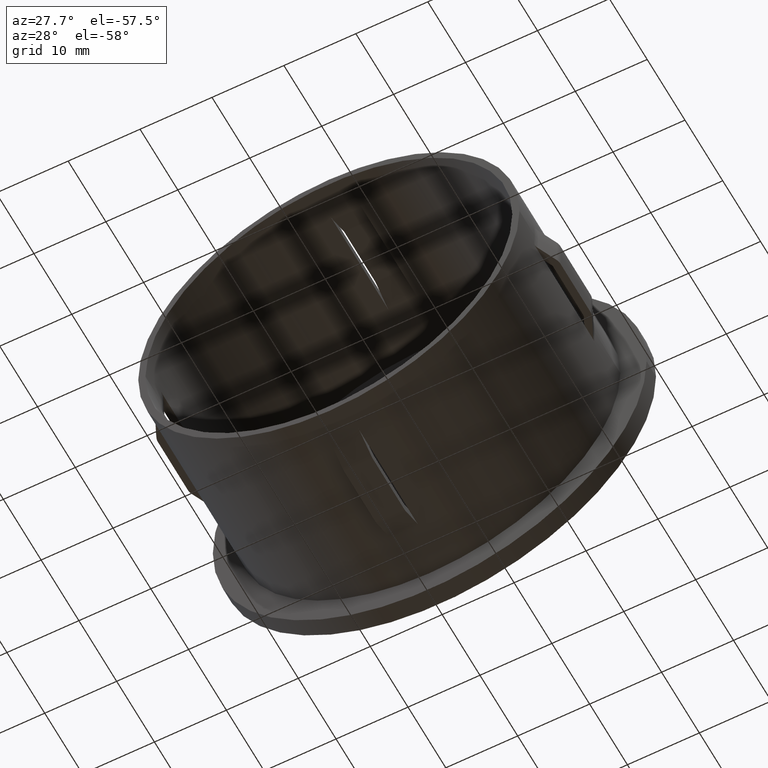
[diagram: clean part render]
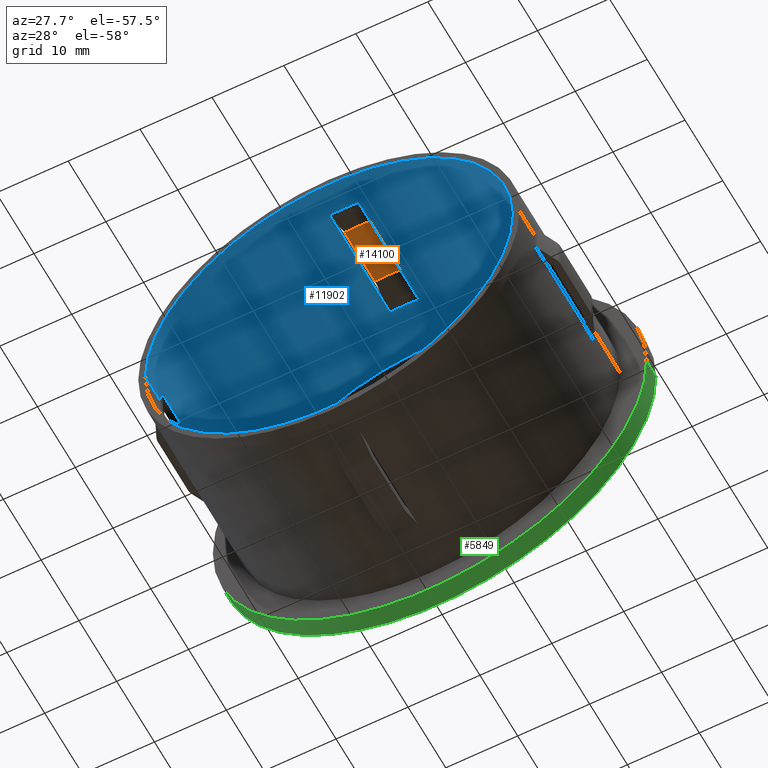
[diagram: same view with three faces highlighted in distinct colors, each labeled with its STEP entity id]
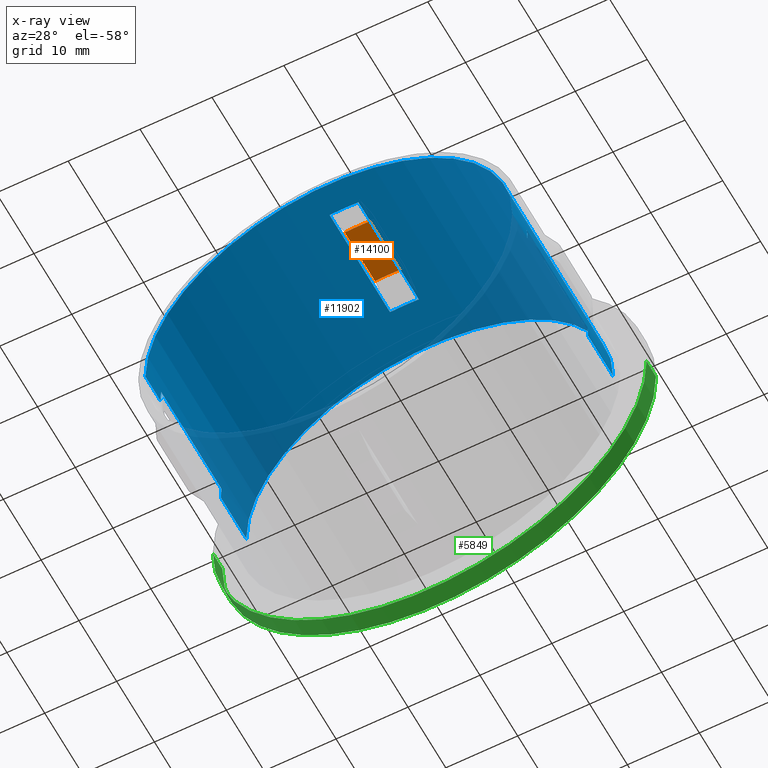
[diagram: x-ray of the same camera — body ghosted, the three highlighted faces saturated]
A machine part, auxiliary view with three faces highlighted in distinct colors.
The next image is the same camera in x-ray (body ghosted, the three faces saturated) — at least one of them is partly hidden behind the body in this view.
Their STEP definitions:

[orange] entity #14100 — the highlighted cylindrical surface (partial cylindrical patch) has radius 27.05 mm, axis along (-0, 1, -0).
#330 = ORIENTED_EDGE ( 'NONE', *, *, #9739, .T. ) ;
#1111 = DIRECTION ( 'NONE',  ( -1.000000000000000000, -1.282605157838674100E-016, 0.0000000000000000000 ) ) ;
#1411 = DIRECTION ( 'NONE',  ( -1.224646799147353200E-016, 1.000000000000000000, -0.0000000000000000000 ) ) ;
#1630 = DIRECTION ( 'NONE',  ( 1.224646799147353200E-016, -1.000000000000000000, 0.0000000000000000000 ) ) ;
#2383 = CARTESIAN_POINT ( 'NONE',  ( 1.494069094959771300E-015, 15.99999999999999600, 0.0000000000000000000 ) ) ;
#2896 = CARTESIAN_POINT ( 'NONE',  ( 2.000000000000006200, 29.19999999999999900, 26.97596152132487600 ) ) ;
#3032 = FACE_OUTER_BOUND ( 'NONE', #6493, .T. ) ;
#3214 = LINE ( 'NONE', #12410, #7482 ) ;
#3545 = CARTESIAN_POINT ( 'NONE',  ( 2.000000000000006200, 15.99999999999777600, 26.97596152134194700 ) ) ;
#3567 = DIRECTION ( 'NONE',  ( -1.224646799147353200E-016, 1.000000000000000000, -0.0000000000000000000 ) ) ;
#4308 = CARTESIAN_POINT ( 'NONE',  ( -1.999999999999990500, 7.999999999999996400, 26.97596152132487600 ) ) ;
#4696 = VECTOR ( 'NONE', #10509, 1000.000000000000000 ) ;
#5153 = VERTEX_POINT ( 'NONE', #4308 ) ;
#5717 = LINE ( 'NONE', #2896, #4696 ) ;
#6493 = EDGE_LOOP ( 'NONE', ( #13798, #11646, #330, #11481 ) ) ;
#7482 = VECTOR ( 'NONE', #1630, 1000.000000000000000 ) ;
#7505 = EDGE_CURVE ( 'NONE', #12868, #10750, #10374, .T. ) ;
#8947 = DIRECTION ( 'NONE',  ( -1.000000000000000000, -1.282605157838674100E-016, 0.0000000000000000000 ) ) ;
#9739 = EDGE_CURVE ( 'NONE', #10750, #12339, #5717, .T. ) ;
#10051 = CIRCLE ( 'NONE', #12204, 27.05000000000000800 ) ;
#10095 = DIRECTION ( 'NONE',  ( -1.224646799147353200E-016, 1.000000000000000000, -0.0000000000000000000 ) ) ;
#10166 = CARTESIAN_POINT ( 'NONE',  ( 2.000000000000008900, 7.999999999999996400, 26.97596152132487600 ) ) ;
#10374 = CIRCLE ( 'NONE', #11903, 27.05000000000000100 ) ;
#10509 = DIRECTION ( 'NONE',  ( 1.224646799147353200E-016, -1.000000000000000000, 0.0000000000000000000 ) ) ;
#10750 = VERTEX_POINT ( 'NONE', #3545 ) ;
#10819 = EDGE_CURVE ( 'NONE', #5153, #12339, #10051, .T. ) ;
#11350 = CARTESIAN_POINT ( 'NONE',  ( 2.473786534277654000E-015, 7.999999999999992900, 0.0000000000000000000 ) ) ;
#11352 = EDGE_CURVE ( 'NONE', #12868, #5153, #3214, .T. ) ;
#11481 = ORIENTED_EDGE ( 'NONE', *, *, #10819, .F. ) ;
#11646 = ORIENTED_EDGE ( 'NONE', *, *, #7505, .T. ) ;
#11903 = AXIS2_PLACEMENT_3D ( 'NONE', #2383, #3567, #12223 ) ;
#12204 = AXIS2_PLACEMENT_3D ( 'NONE', #11350, #1411, #1111 ) ;
#12213 = CARTESIAN_POINT ( 'NONE',  ( -1.224646799147354400E-016, 29.19999999999999900, 0.0000000000000000000 ) ) ;
#12223 = DIRECTION ( 'NONE',  ( -1.000000000000000000, -1.282605157838674300E-016, 0.0000000000000000000 ) ) ;
#12339 = VERTEX_POINT ( 'NONE', #10166 ) ;
#12410 = CARTESIAN_POINT ( 'NONE',  ( -1.999999999999993100, 29.19999999999999900, 26.97596152132487600 ) ) ;
#12519 = CARTESIAN_POINT ( 'NONE',  ( -1.999999999999993100, 15.99999999999777600, 26.97596152134194700 ) ) ;
#12868 = VERTEX_POINT ( 'NONE', #12519 ) ;
#13481 = AXIS2_PLACEMENT_3D ( 'NONE', #12213, #10095, #8947 ) ;
#13798 = ORIENTED_EDGE ( 'NONE', *, *, #11352, .F. ) ;
#14100 = ADVANCED_FACE ( 'NONE', ( #3032 ), #14145, .F. ) ;
#14145 = CYLINDRICAL_SURFACE ( 'NONE', #13481, 27.05000000000000400 ) ;

[blue] entity #11902 — the highlighted cylindrical surface (partial cylindrical patch) has radius 25.5 mm, axis along (-0, 1, -0).
#228 = LINE ( 'NONE', #466, #3467 ) ;
#267 = AXIS2_PLACEMENT_3D ( 'NONE', #10960, #2176, #13056 ) ;
#304 = CARTESIAN_POINT ( 'NONE',  ( 25.50000000000000000, 26.70000000000000300, 3.122849337825750600E-015 ) ) ;
#437 = DIRECTION ( 'NONE',  ( 0.0000000000000000000, -1.000000000000000000, 0.0000000000000000000 ) ) ;
#466 = CARTESIAN_POINT ( 'NONE',  ( 25.50000000000000400, 29.20000000000000300, 3.122849337825751000E-015 ) ) ;
#582 = EDGE_CURVE ( 'NONE', #12777, #11976, #13675, .T. ) ;
#637 = EDGE_CURVE ( 'NONE', #12139, #10779, #11811, .T. ) ;
#749 = EDGE_CURVE ( 'NONE', #5754, #10779, #7219, .T. ) ;
#934 = EDGE_CURVE ( 'NONE', #2255, #4967, #228, .T. ) ;
#1352 = EDGE_LOOP ( 'NONE', ( #5286, #12154, #9343, #3638 ) ) ;
#1385 = CARTESIAN_POINT ( 'NONE',  ( 25.42144763777232400, 19.99999999999998900, 2.000000000000000000 ) ) ;
#1473 = DIRECTION ( 'NONE',  ( -1.000000000000000000, -1.360567432138672100E-016, 0.0000000000000000000 ) ) ;
#1478 = DIRECTION ( 'NONE',  ( -1.000000000000000000, -1.360567432138672300E-016, 0.0000000000000000000 ) ) ;
#1729 = ORIENTED_EDGE ( 'NONE', *, *, #5033, .F. ) ;
#1806 = CARTESIAN_POINT ( 'NONE',  ( 2.963645253936595000E-015, 3.999999999999996400, 0.0000000000000000000 ) ) ;
#1847 = DIRECTION ( 'NONE',  ( -1.000000000000000000, -1.360567432138672100E-016, 0.0000000000000000000 ) ) ;
#1853 = VECTOR ( 'NONE', #7165, 1000.000000000000000 ) ;
#1864 = CIRCLE ( 'NONE', #6890, 25.50000000000000400 ) ;
#2021 = CARTESIAN_POINT ( 'NONE',  ( -1.999999999999993600, 4.000000000016227000, 25.42144763777232100 ) ) ;
#2042 = VERTEX_POINT ( 'NONE', #5284 ) ;
#2081 = CARTESIAN_POINT ( 'NONE',  ( -25.50000000000000400, 29.19999999999999600, 0.0000000000000000000 ) ) ;
#2176 = DIRECTION ( 'NONE',  ( -1.224646799147353200E-016, 1.000000000000000000, -0.0000000000000000000 ) ) ;
#2201 = CARTESIAN_POINT ( 'NONE',  ( -25.49999999999999600, -6.592296289779364400E-015, 0.0000000000000000000 ) ) ;
#2255 = VERTEX_POINT ( 'NONE', #9118 ) ;
#2378 = ORIENTED_EDGE ( 'NONE', *, *, #582, .F. ) ;
#2613 = AXIS2_PLACEMENT_3D ( 'NONE', #11508, #5116, #3943 ) ;
#2627 = CARTESIAN_POINT ( 'NONE',  ( 25.50000000000000400, 19.99999999999999600, 3.122849337825751000E-015 ) ) ;
#2674 = DIRECTION ( 'NONE',  ( 0.0000000000000000000, -1.000000000000000000, 0.0000000000000000000 ) ) ;
#2768 = ORIENTED_EDGE ( 'NONE', *, *, #14123, .T. ) ;
#2979 = DIRECTION ( 'NONE',  ( -1.000000000000000000, -1.360567432138672100E-016, 0.0000000000000000000 ) ) ;
#3095 = VECTOR ( 'NONE', #5910, 1000.000000000000000 ) ;
#3160 = EDGE_CURVE ( 'NONE', #7506, #2255, #8238, .T. ) ;
#3467 = VECTOR ( 'NONE', #5945, 1000.000000000000000 ) ;
#3549 = FACE_OUTER_BOUND ( 'NONE', #4922, .T. ) ;
#3593 = DIRECTION ( 'NONE',  ( 0.0000000000000000000, -1.000000000000000000, 0.0000000000000000000 ) ) ;
#3638 = ORIENTED_EDGE ( 'NONE', *, *, #4115, .T. ) ;
#3720 = EDGE_CURVE ( 'NONE', #2042, #5754, #12833, .T. ) ;
#3898 = AXIS2_PLACEMENT_3D ( 'NONE', #11409, #11214, #13514 ) ;
#3943 = DIRECTION ( 'NONE',  ( -1.000000000000000000, -1.360567432138672100E-016, 0.0000000000000000000 ) ) ;
#4095 = VERTEX_POINT ( 'NONE', #10352 ) ;
#4115 = EDGE_CURVE ( 'NONE', #2042, #12139, #11820, .T. ) ;
#4316 = VERTEX_POINT ( 'NONE', #9409 ) ;
#4335 = CARTESIAN_POINT ( 'NONE',  ( -25.42144763777232400, 19.99999999999998900, 2.000000000000000000 ) ) ;
#4399 = FACE_BOUND ( 'NONE', #1352, .T. ) ;
#4773 = AXIS2_PLACEMENT_3D ( 'NONE', #1806, #8291, #10513 ) ;
#4870 = DIRECTION ( 'NONE',  ( -1.224646799147353200E-016, 1.000000000000000000, -0.0000000000000000000 ) ) ;
#4889 = CARTESIAN_POINT ( 'NONE',  ( 25.42144763777232400, 61.24134675736339500, 2.000000000000000000 ) ) ;
#4922 = EDGE_LOOP ( 'NONE', ( #9917, #7535, #5992, #8775, #9567, #12011, #12792, #2768, #1729, #2378, #9398, #12133 ) ) ;
#4967 = VERTEX_POINT ( 'NONE', #9410 ) ;
#5033 = EDGE_CURVE ( 'NONE', #11976, #10080, #8717, .T. ) ;
#5116 = DIRECTION ( 'NONE',  ( -1.224646799147353200E-016, 1.000000000000000000, -0.0000000000000000000 ) ) ;
#5284 = CARTESIAN_POINT ( 'NONE',  ( -1.999999999999992700, 19.99999999999999300, 25.42144763777232400 ) ) ;
#5286 = ORIENTED_EDGE ( 'NONE', *, *, #637, .T. ) ;
#5395 = LINE ( 'NONE', #2081, #8330 ) ;
#5754 = VERTEX_POINT ( 'NONE', #11315 ) ;
#5910 = DIRECTION ( 'NONE',  ( 0.0000000000000000000, -1.000000000000000000, 0.0000000000000000000 ) ) ;
#5945 = DIRECTION ( 'NONE',  ( -1.224646799147353200E-016, 1.000000000000000000, -0.0000000000000000000 ) ) ;
#5981 = DIRECTION ( 'NONE',  ( -1.000000000000000000, -1.360567432138672300E-016, 0.0000000000000000000 ) ) ;
#5992 = ORIENTED_EDGE ( 'NONE', *, *, #6449, .T. ) ;
#6024 = CARTESIAN_POINT ( 'NONE',  ( -1.999999999999993600, 61.24134675736339500, 25.42144763777232100 ) ) ;
#6042 = EDGE_CURVE ( 'NONE', #9081, #12129, #6089, .T. ) ;
#6089 = CIRCLE ( 'NONE', #267, 25.50000000000000000 ) ;
#6100 = AXIS2_PLACEMENT_3D ( 'NONE', #7082, #4870, #5981 ) ;
#6277 = EDGE_CURVE ( 'NONE', #7552, #4967, #6456, .T. ) ;
#6295 = DIRECTION ( 'NONE',  ( -1.224646799147353200E-016, 1.000000000000000000, -0.0000000000000000000 ) ) ;
#6316 = VECTOR ( 'NONE', #6295, 1000.000000000000000 ) ;
#6449 = EDGE_CURVE ( 'NONE', #7506, #9081, #5395, .T. ) ;
#6456 = CIRCLE ( 'NONE', #6100, 25.50000000000000000 ) ;
#6626 = CIRCLE ( 'NONE', #11299, 25.50000000000000000 ) ;
#6741 = CARTESIAN_POINT ( 'NONE',  ( 2.000000000000006200, 61.24134675736339500, 25.42144763777232100 ) ) ;
#6890 = AXIS2_PLACEMENT_3D ( 'NONE', #10158, #13568, #1473 ) ;
#7057 = CARTESIAN_POINT ( 'NONE',  ( 25.42144763777232400, 4.000000000000000000, 1.999999999999999600 ) ) ;
#7082 = CARTESIAN_POINT ( 'NONE',  ( 2.963645253936595000E-015, 3.999999999999996400, 0.0000000000000000000 ) ) ;
#7165 = DIRECTION ( 'NONE',  ( -1.224646799147353200E-016, 1.000000000000000000, -0.0000000000000000000 ) ) ;
#7211 = EDGE_CURVE ( 'NONE', #13100, #12129, #8168, .T. ) ;
#7219 = LINE ( 'NONE', #6741, #12689 ) ;
#7506 = VERTEX_POINT ( 'NONE', #2201 ) ;
#7535 = ORIENTED_EDGE ( 'NONE', *, *, #3160, .F. ) ;
#7552 = VERTEX_POINT ( 'NONE', #7057 ) ;
#7670 = LINE ( 'NONE', #10415, #1853 ) ;
#8017 = CYLINDRICAL_SURFACE ( 'NONE', #2613, 25.50000000000000400 ) ;
#8168 = LINE ( 'NONE', #11419, #8672 ) ;
#8238 = CIRCLE ( 'NONE', #3898, 25.50000000000000000 ) ;
#8291 = DIRECTION ( 'NONE',  ( -1.224646799147353200E-016, 1.000000000000000000, -0.0000000000000000000 ) ) ;
#8330 = VECTOR ( 'NONE', #12089, 1000.000000000000000 ) ;
#8369 = DIRECTION ( 'NONE',  ( -1.224646799147353200E-016, 1.000000000000000000, -0.0000000000000000000 ) ) ;
#8672 = VECTOR ( 'NONE', #437, 1000.000000000000000 ) ;
#8717 = LINE ( 'NONE', #9741, #6316 ) ;
#8775 = ORIENTED_EDGE ( 'NONE', *, *, #6042, .T. ) ;
#9015 = AXIS2_PLACEMENT_3D ( 'NONE', #9460, #8369, #2979 ) ;
#9081 = VERTEX_POINT ( 'NONE', #10076 ) ;
#9118 = CARTESIAN_POINT ( 'NONE',  ( 25.50000000000000400, -3.465976141278638700E-016, 3.122849337825751000E-015 ) ) ;
#9343 = ORIENTED_EDGE ( 'NONE', *, *, #3720, .F. ) ;
#9398 = ORIENTED_EDGE ( 'NONE', *, *, #12914, .T. ) ;
#9409 = CARTESIAN_POINT ( 'NONE',  ( -25.50000000000000000, 26.69999999999999600, 0.0000000000000000000 ) ) ;
#9410 = CARTESIAN_POINT ( 'NONE',  ( 25.50000000000000400, 4.000000000000000000, 3.122849337825751000E-015 ) ) ;
#9460 = CARTESIAN_POINT ( 'NONE',  ( 1.004210375300830500E-015, 19.99999999999999300, 0.0000000000000000000 ) ) ;
#9567 = ORIENTED_EDGE ( 'NONE', *, *, #7211, .F. ) ;
#9741 = CARTESIAN_POINT ( 'NONE',  ( 25.50000000000000400, 29.20000000000000300, 3.122849337825751000E-015 ) ) ;
#9917 = ORIENTED_EDGE ( 'NONE', *, *, #934, .F. ) ;
#10061 = LINE ( 'NONE', #4889, #12973 ) ;
#10076 = CARTESIAN_POINT ( 'NONE',  ( -25.49999999999999600, 3.999999999999993300, 0.0000000000000000000 ) ) ;
#10080 = VERTEX_POINT ( 'NONE', #304 ) ;
#10158 = CARTESIAN_POINT ( 'NONE',  ( 1.004210375300830500E-015, 19.99999999999999300, 0.0000000000000000000 ) ) ;
#10352 = CARTESIAN_POINT ( 'NONE',  ( -25.50000000000000400, 19.99999999999998900, 0.0000000000000000000 ) ) ;
#10415 = CARTESIAN_POINT ( 'NONE',  ( -25.50000000000000400, 29.19999999999999600, 0.0000000000000000000 ) ) ;
#10513 = DIRECTION ( 'NONE',  ( -1.000000000000000000, -1.360567432138672300E-016, 0.0000000000000000000 ) ) ;
#10649 = CARTESIAN_POINT ( 'NONE',  ( -25.42144763777231700, 3.999999999999993300, 2.000000000000000000 ) ) ;
#10779 = VERTEX_POINT ( 'NONE', #12347 ) ;
#10960 = CARTESIAN_POINT ( 'NONE',  ( 2.963645253936595000E-015, 3.999999999999996400, 0.0000000000000000000 ) ) ;
#10993 = EDGE_CURVE ( 'NONE', #4095, #4316, #7670, .T. ) ;
#11214 = DIRECTION ( 'NONE',  ( -1.224646799147353200E-016, 1.000000000000000000, -0.0000000000000000000 ) ) ;
#11274 = DIRECTION ( 'NONE',  ( -1.224646799147353200E-016, 1.000000000000000000, -0.0000000000000000000 ) ) ;
#11299 = AXIS2_PLACEMENT_3D ( 'NONE', #12329, #11274, #1478 ) ;
#11315 = CARTESIAN_POINT ( 'NONE',  ( 2.000000000000008000, 19.99999999999999300, 25.42144763777232400 ) ) ;
#11324 = CARTESIAN_POINT ( 'NONE',  ( 1.004210375300830500E-015, 19.99999999999999300, 0.0000000000000000000 ) ) ;
#11409 = CARTESIAN_POINT ( 'NONE',  ( 3.453503973595536000E-015, -3.469446951953614200E-015, 0.0000000000000000000 ) ) ;
#11419 = CARTESIAN_POINT ( 'NONE',  ( -25.42144763777231700, 61.24134675736339500, 2.000000000000000000 ) ) ;
#11508 = CARTESIAN_POINT ( 'NONE',  ( -1.224646799147354400E-016, 29.19999999999999900, 0.0000000000000000000 ) ) ;
#11811 = CIRCLE ( 'NONE', #4773, 25.50000000000000000 ) ;
#11820 = LINE ( 'NONE', #6024, #3095 ) ;
#11902 = ADVANCED_FACE ( 'NONE', ( #3549, #4399 ), #8017, .F. ) ;
#11976 = VERTEX_POINT ( 'NONE', #2627 ) ;
#12011 = ORIENTED_EDGE ( 'NONE', *, *, #12707, .F. ) ;
#12089 = DIRECTION ( 'NONE',  ( -1.224646799147353200E-016, 1.000000000000000000, -0.0000000000000000000 ) ) ;
#12129 = VERTEX_POINT ( 'NONE', #10649 ) ;
#12133 = ORIENTED_EDGE ( 'NONE', *, *, #6277, .T. ) ;
#12139 = VERTEX_POINT ( 'NONE', #2021 ) ;
#12154 = ORIENTED_EDGE ( 'NONE', *, *, #749, .F. ) ;
#12329 = CARTESIAN_POINT ( 'NONE',  ( 1.836970198721030900E-016, 26.69999999999999900, 0.0000000000000000000 ) ) ;
#12347 = CARTESIAN_POINT ( 'NONE',  ( 2.000000000000006200, 4.000000000008108200, 25.42144763777232100 ) ) ;
#12641 = DIRECTION ( 'NONE',  ( -1.224646799147353200E-016, 1.000000000000000000, -0.0000000000000000000 ) ) ;
#12689 = VECTOR ( 'NONE', #3593, 1000.000000000000000 ) ;
#12707 = EDGE_CURVE ( 'NONE', #4095, #13100, #1864, .T. ) ;
#12777 = VERTEX_POINT ( 'NONE', #1385 ) ;
#12792 = ORIENTED_EDGE ( 'NONE', *, *, #10993, .T. ) ;
#12833 = CIRCLE ( 'NONE', #9015, 25.50000000000000400 ) ;
#12914 = EDGE_CURVE ( 'NONE', #12777, #7552, #10061, .T. ) ;
#12973 = VECTOR ( 'NONE', #2674, 1000.000000000000000 ) ;
#13056 = DIRECTION ( 'NONE',  ( -1.000000000000000000, -1.360567432138672300E-016, 0.0000000000000000000 ) ) ;
#13100 = VERTEX_POINT ( 'NONE', #4335 ) ;
#13514 = DIRECTION ( 'NONE',  ( -1.000000000000000000, -1.224646799147353000E-016, 0.0000000000000000000 ) ) ;
#13568 = DIRECTION ( 'NONE',  ( -1.224646799147353200E-016, 1.000000000000000000, -0.0000000000000000000 ) ) ;
#13675 = CIRCLE ( 'NONE', #13837, 25.50000000000000400 ) ;
#13837 = AXIS2_PLACEMENT_3D ( 'NONE', #11324, #12641, #1847 ) ;
#14123 = EDGE_CURVE ( 'NONE', #4316, #10080, #6626, .T. ) ;

[green] entity #5849 — the highlighted cylindrical surface (partial cylindrical patch) has radius 30.15 mm, axis along (-0, 1, -0).
#773 = DIRECTION ( 'NONE',  ( -1.000000000000000000, -1.150728673948130800E-016, 0.0000000000000000000 ) ) ;
#1035 = VECTOR ( 'NONE', #4358, 1000.000000000000000 ) ;
#1079 = CARTESIAN_POINT ( 'NONE',  ( 30.15000000000000200, 29.19999999999999900, 3.692310099429270400E-015 ) ) ;
#1574 = CARTESIAN_POINT ( 'NONE',  ( -1.224646799147354400E-016, 29.19999999999999900, 0.0000000000000000000 ) ) ;
#1693 = DIRECTION ( 'NONE',  ( -1.224646799147353200E-016, 1.000000000000000000, -0.0000000000000000000 ) ) ;
#2174 = CIRCLE ( 'NONE', #11726, 30.14999999999999900 ) ;
#2855 = CARTESIAN_POINT ( 'NONE',  ( 1.836970198721031900E-016, 26.69999999999999900, 0.0000000000000000000 ) ) ;
#2929 = ORIENTED_EDGE ( 'NONE', *, *, #8978, .F. ) ;
#3129 = DIRECTION ( 'NONE',  ( -1.224646799147353200E-016, 1.000000000000000000, -0.0000000000000000000 ) ) ;
#3780 = VERTEX_POINT ( 'NONE', #10469 ) ;
#4358 = DIRECTION ( 'NONE',  ( -1.224646799147353200E-016, 1.000000000000000000, -0.0000000000000000000 ) ) ;
#4694 = DIRECTION ( 'NONE',  ( -1.000000000000000000, -1.150728673948131100E-016, 0.0000000000000000000 ) ) ;
#4715 = EDGE_LOOP ( 'NONE', ( #8529, #9369, #13523, #2929 ) ) ;
#4840 = EDGE_CURVE ( 'NONE', #9894, #9884, #12996, .T. ) ;
#4842 = DIRECTION ( 'NONE',  ( -1.224646799147353200E-016, 1.000000000000000000, -0.0000000000000000000 ) ) ;
#4906 = CIRCLE ( 'NONE', #7528, 30.14999999999999500 ) ;
#5387 = CARTESIAN_POINT ( 'NONE',  ( 30.14999999999999500, 29.20000000000000300, 3.692310099429269600E-015 ) ) ;
#5849 = ADVANCED_FACE ( 'NONE', ( #12597 ), #8166, .T. ) ;
#6409 = CARTESIAN_POINT ( 'NONE',  ( 30.14999999999999500, 26.70000000000000300, 3.692310099429269600E-015 ) ) ;
#6928 = CARTESIAN_POINT ( 'NONE',  ( -30.14999999999999500, 29.19999999999999600, 0.0000000000000000000 ) ) ;
#7146 = DIRECTION ( 'NONE',  ( -1.224646799147353200E-016, 1.000000000000000000, -0.0000000000000000000 ) ) ;
#7528 = AXIS2_PLACEMENT_3D ( 'NONE', #2855, #7146, #9271 ) ;
#8166 = CYLINDRICAL_SURFACE ( 'NONE', #8306, 30.14999999999999500 ) ;
#8227 = EDGE_CURVE ( 'NONE', #3780, #12256, #11234, .T. ) ;
#8306 = AXIS2_PLACEMENT_3D ( 'NONE', #1574, #4842, #4694 ) ;
#8529 = ORIENTED_EDGE ( 'NONE', *, *, #4840, .F. ) ;
#8978 = EDGE_CURVE ( 'NONE', #9884, #12256, #2174, .T. ) ;
#9271 = DIRECTION ( 'NONE',  ( -1.000000000000000000, -1.150728673948131100E-016, 0.0000000000000000000 ) ) ;
#9369 = ORIENTED_EDGE ( 'NONE', *, *, #11369, .T. ) ;
#9611 = CARTESIAN_POINT ( 'NONE',  ( -1.224646799147349800E-016, 29.19999999999999600, 0.0000000000000000000 ) ) ;
#9884 = VERTEX_POINT ( 'NONE', #1079 ) ;
#9894 = VERTEX_POINT ( 'NONE', #6409 ) ;
#10010 = VECTOR ( 'NONE', #1693, 1000.000000000000000 ) ;
#10469 = CARTESIAN_POINT ( 'NONE',  ( -30.14999999999999500, 26.69999999999999600, 0.0000000000000000000 ) ) ;
#11087 = CARTESIAN_POINT ( 'NONE',  ( -30.14999999999999900, 29.19999999999999200, 0.0000000000000000000 ) ) ;
#11234 = LINE ( 'NONE', #6928, #10010 ) ;
#11369 = EDGE_CURVE ( 'NONE', #9894, #3780, #4906, .T. ) ;
#11726 = AXIS2_PLACEMENT_3D ( 'NONE', #9611, #3129, #773 ) ;
#12256 = VERTEX_POINT ( 'NONE', #11087 ) ;
#12597 = FACE_OUTER_BOUND ( 'NONE', #4715, .T. ) ;
#12996 = LINE ( 'NONE', #5387, #1035 ) ;
#13523 = ORIENTED_EDGE ( 'NONE', *, *, #8227, .T. ) ;